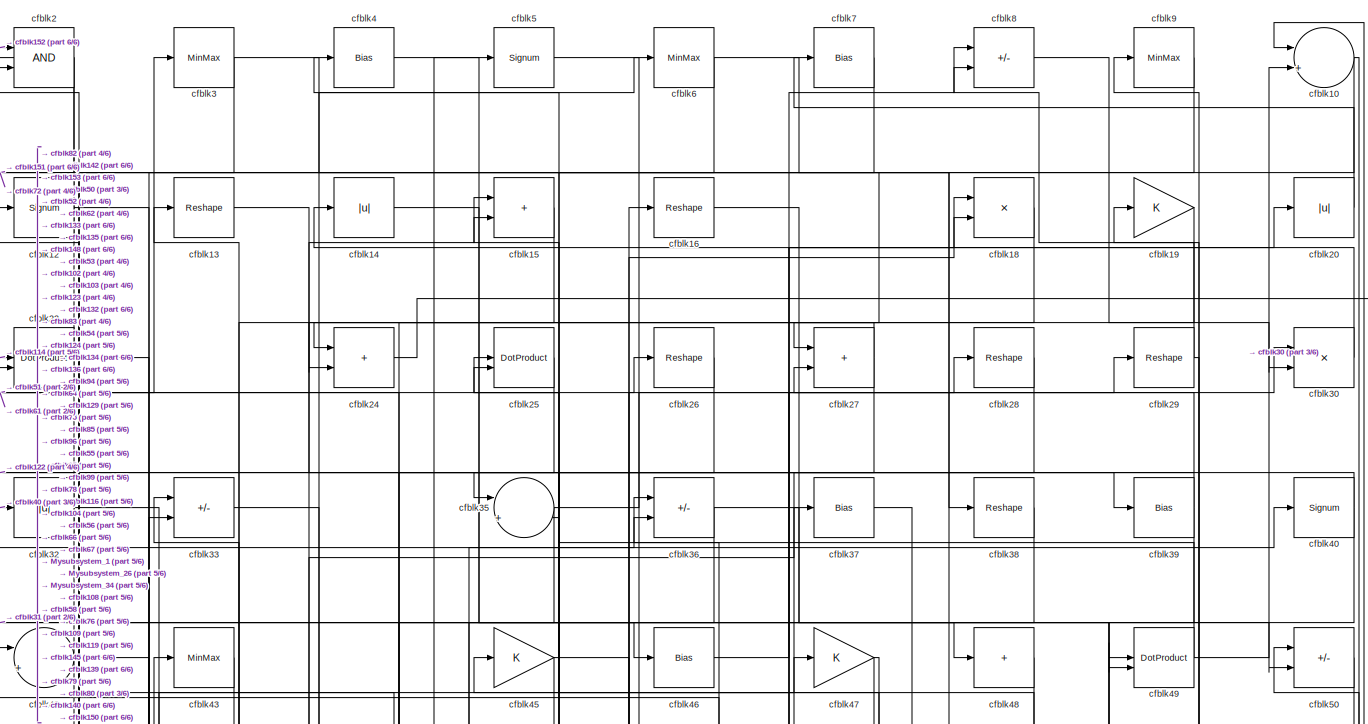
[diagram: root canvas - part 1/6, full width, top band]
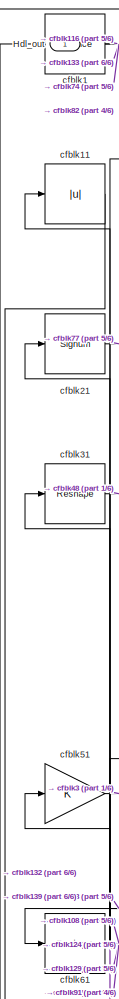
[diagram: root canvas - part 2/6, top left region]
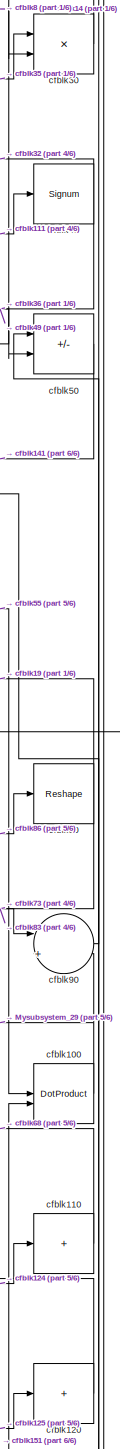
[diagram: root canvas - part 3/6, middle right region]
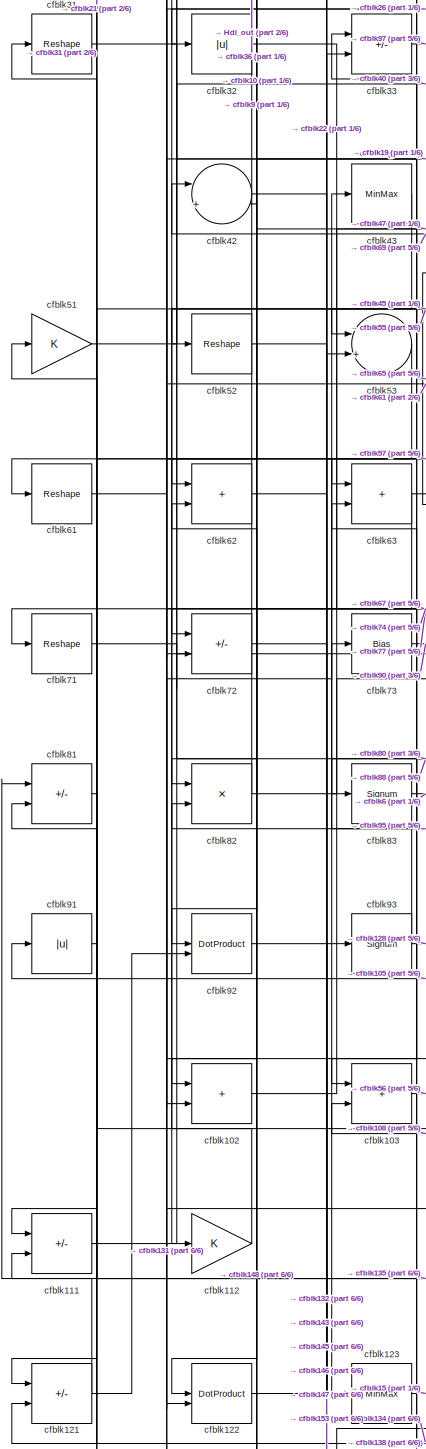
[diagram: root canvas - part 4/6, middle left region]
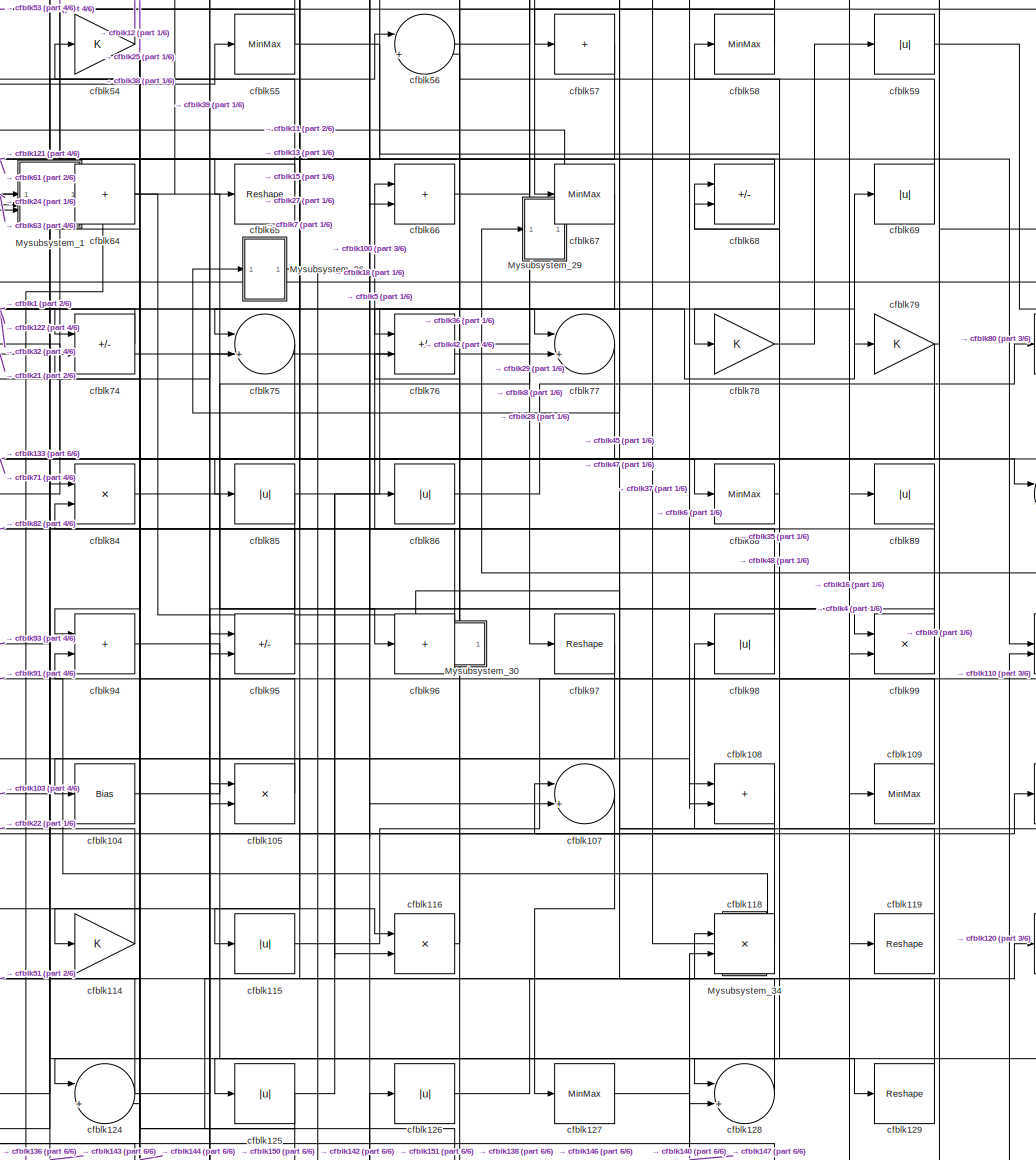
[diagram: root canvas - part 5/6, central region]
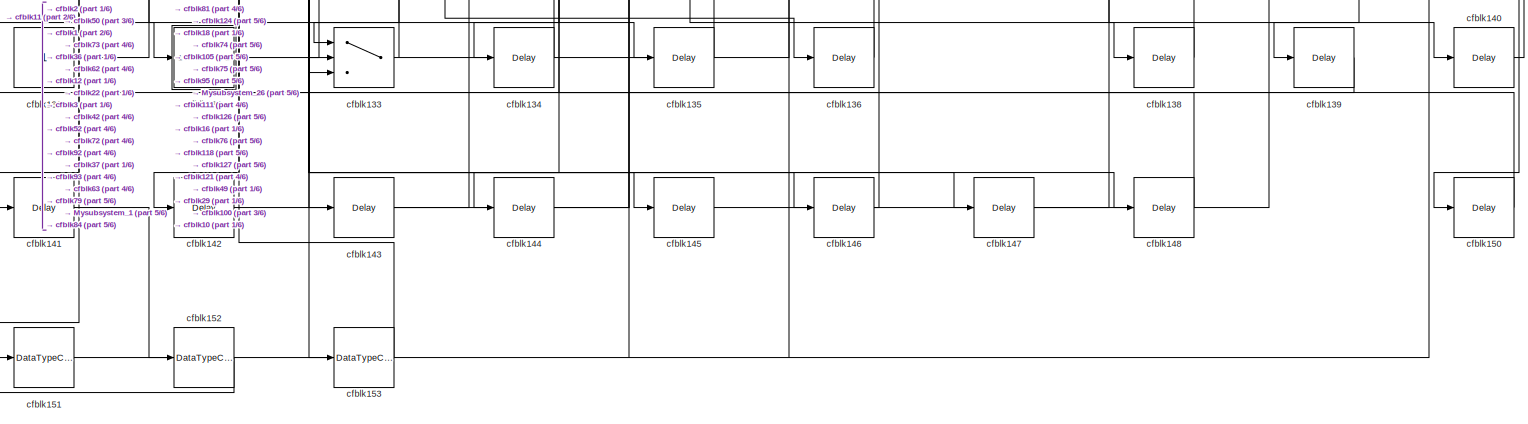
[diagram: root canvas - part 6/6, full width, bottom band]
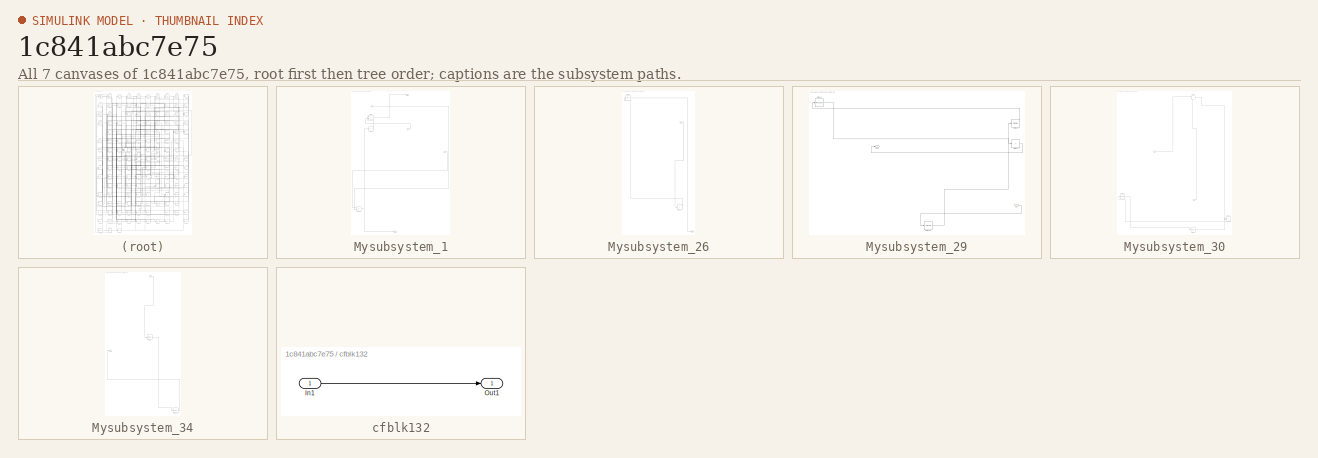
[diagram: thumbnail index - all 7 canvases of the model, root first then tree order]
MODEL slx_1c841abc7e75
KIND model
CONFIG AbsTol = auto
CONFIG EnableMultiTasking = off
CONFIG FixedStep = auto
CONFIG MaxStep = auto
CONFIG MinStep = auto
CONFIG RelTol = 1e-3
CONFIG SampleTimeConstraint = Unconstrained
CONFIG SolverName = VariableStepAuto
CONFIG StartTime = 0.0
CONFIG StopTime = 10.0
BLOCK [Outport] Hdl_out
  OutDataTypeStr = uint8
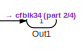
[diagram: Mysubsystem_1 - part 1/4, top center region]
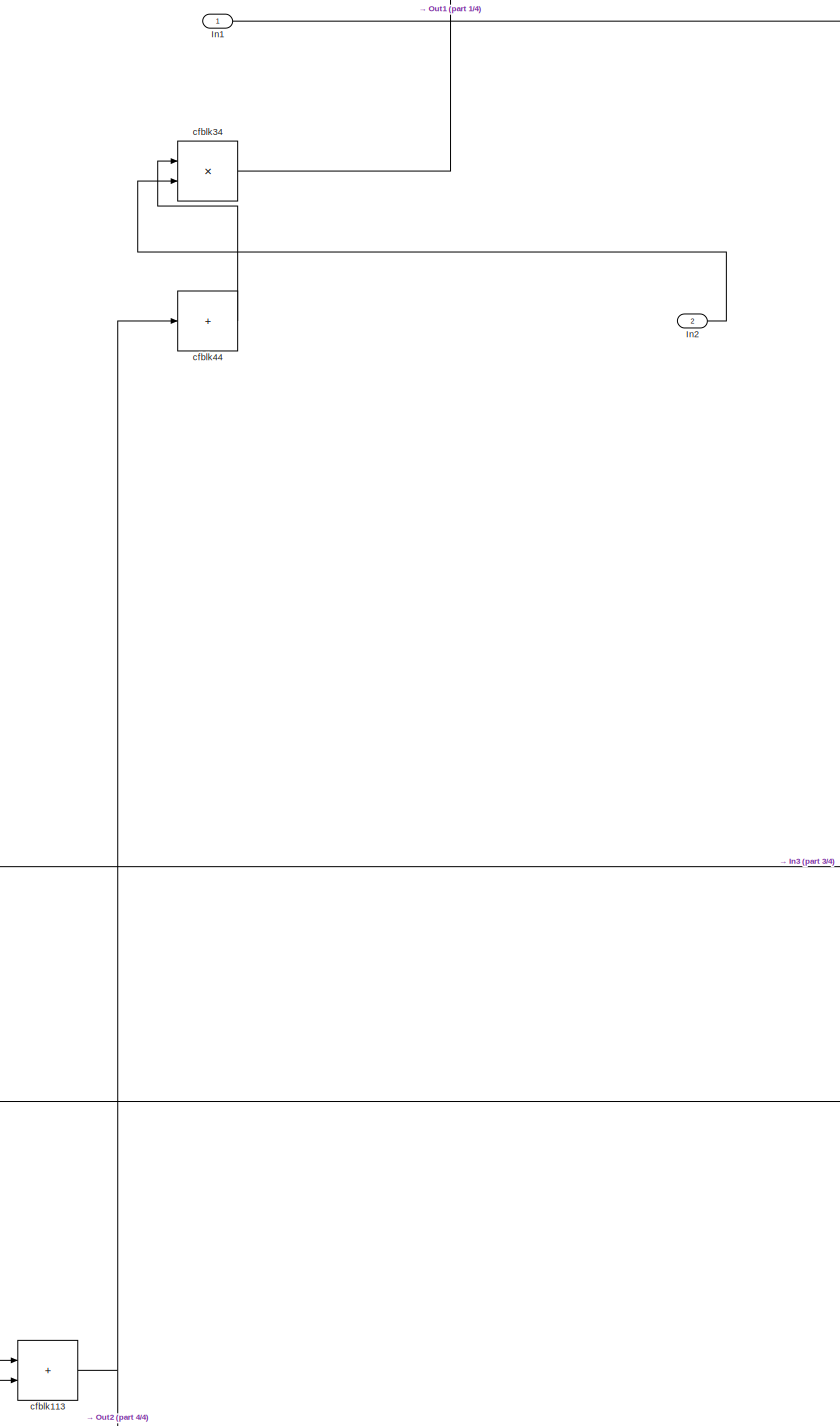
[diagram: Mysubsystem_1 - part 2/4, center side, full height]
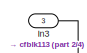
[diagram: Mysubsystem_1 - part 3/4, middle right region]
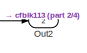
[diagram: Mysubsystem_1 - part 4/4, bottom center region]
BLOCK [SubSystem] Mysubsystem_1
  RTWFcnName = Mysubsystem_1
  RTWFcnNameOpts = User specified
  RTWFileNameOpts = Use function name
  RTWSystemCode = Reusable function
  TreatAsAtomicUnit = on
BLOCK [Inport] Mysubsystem_1/In1
BLOCK [Inport] Mysubsystem_1/In2
  Port = 2
BLOCK [Inport] Mysubsystem_1/In3
  Port = 3
BLOCK [Outport] Mysubsystem_1/Out1
BLOCK [Outport] Mysubsystem_1/Out2
  Port = 2
BLOCK [Sum] Mysubsystem_1/cfblk113
  IconShape = rectangular
BLOCK [Product] Mysubsystem_1/cfblk34
  Inputs = */
  RndMeth = Zero
  SaturateOnIntegerOverflow = on
BLOCK [Sum] Mysubsystem_1/cfblk44
  IconShape = rectangular
  Inputs = +
BLOCK [SubSystem] Mysubsystem_26
  RTWFcnName = Mysubsystem_26
  RTWFcnNameOpts = User specified
  RTWFileNameOpts = Use function name
  RTWSystemCode = Reusable function
  TreatAsAtomicUnit = on
BLOCK [Inport] Mysubsystem_26/In1
BLOCK [Outport] Mysubsystem_26/Out1
BLOCK [Sum] Mysubsystem_26/cfblk117
  IconShape = rectangular
  Inputs = +
BLOCK [Abs] Mysubsystem_26/cfblk23
  SaturateOnIntegerOverflow = off
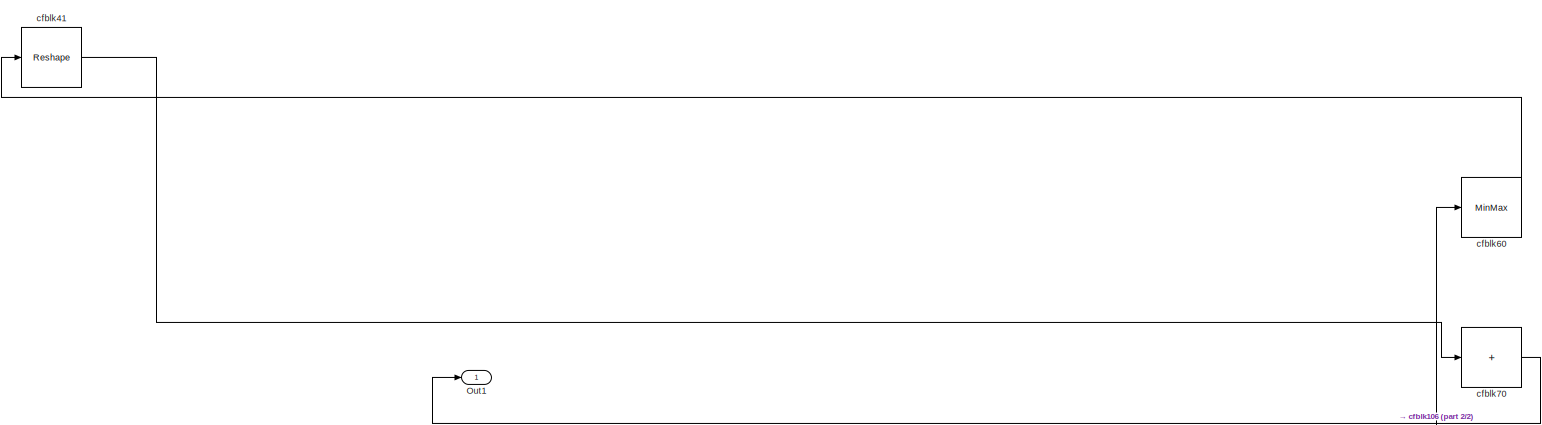
[diagram: Mysubsystem_29 - part 1/2, full width, top band]
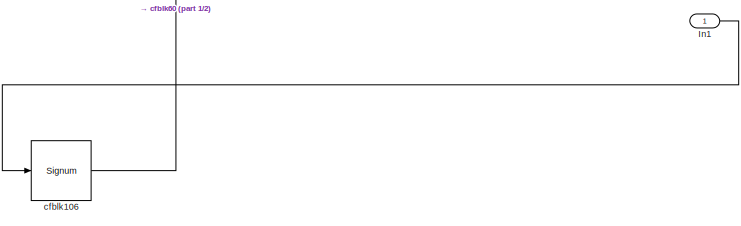
[diagram: Mysubsystem_29 - part 2/2, bottom right region]
BLOCK [SubSystem] Mysubsystem_29
  RTWFcnName = Mysubsystem_29
  RTWFcnNameOpts = User specified
  RTWFileNameOpts = Use function name
  RTWSystemCode = Reusable function
  TreatAsAtomicUnit = on
BLOCK [Inport] Mysubsystem_29/In1
BLOCK [Outport] Mysubsystem_29/Out1
BLOCK [Signum] Mysubsystem_29/cfblk106
BLOCK [Reshape] Mysubsystem_29/cfblk41
BLOCK [MinMax] Mysubsystem_29/cfblk60
BLOCK [Sum] Mysubsystem_29/cfblk70
  IconShape = rectangular
  Inputs = +
BLOCK [SubSystem] Mysubsystem_30
  RTWFcnName = Mysubsystem_30
  RTWFcnNameOpts = User specified
  RTWFileNameOpts = Use function name
  RTWSystemCode = Reusable function
  TreatAsAtomicUnit = on
BLOCK [Inport] Mysubsystem_30/In1
BLOCK [Inport] Mysubsystem_30/In2
  Port = 2
BLOCK [Reshape] Mysubsystem_30/cfblk101
BLOCK [Sum] Mysubsystem_30/cfblk130
  IconShape = rectangular
  Inputs = +-
BLOCK [Delay] Mysubsystem_30/cfblk137
  InputPortMap = u0
  SampleTime = 1
BLOCK [Sum] Mysubsystem_30/cfblk17
  Inputs = |++
BLOCK [SubSystem] Mysubsystem_34
  RTWFcnName = Mysubsystem_34
  RTWFcnNameOpts = User specified
  RTWFileNameOpts = Use function name
  RTWSystemCode = Reusable function
  TreatAsAtomicUnit = on
BLOCK [Inport] Mysubsystem_34/In1
BLOCK [Outport] Mysubsystem_34/Out1
BLOCK [Delay] Mysubsystem_34/cfblk149
  InputPortMap = u0
  SampleTime = 1
BLOCK [MinMax] Mysubsystem_34/cfblk87
BLOCK [Reference] cfblk1  REF=hdlsllib/Logic and Bit
Operations/Bit Slice
  SourceBlock = hdlsllib/Logic and Bit\nOperations/Bit Slice
  SourceType = Bit Slice
BLOCK [Sum] cfblk10
  Inputs = |++
  OutDataTypeStr = uint8
BLOCK [DotProduct] cfblk100
  OutDataTypeStr = uint8
BLOCK [Sum] cfblk102
  IconShape = rectangular
  OutDataTypeStr = uint8
BLOCK [Sum] cfblk103
  IconShape = rectangular
  OutDataTypeStr = uint8
BLOCK [Bias] cfblk104
  Bias = 0.0
  SaturateOnIntegerOverflow = off
BLOCK [Product] cfblk105
  Inputs = */
  OutDataTypeStr = uint8
  RndMeth = Zero
  SaturateOnIntegerOverflow = on
BLOCK [Sum] cfblk107
  Inputs = |++
  OutDataTypeStr = uint8
BLOCK [Sum] cfblk108
  IconShape = rectangular
  OutDataTypeStr = uint8
BLOCK [MinMax] cfblk109
  OutDataTypeStr = uint8
BLOCK [Abs] cfblk11
  OutDataTypeStr = uint8
  SaturateOnIntegerOverflow = off
BLOCK [Sum] cfblk110
  IconShape = rectangular
  Inputs = +
  OutDataTypeStr = uint8
BLOCK [Sum] cfblk111
  IconShape = rectangular
  Inputs = +-
  OutDataTypeStr = uint8
BLOCK [Gain] cfblk112
  OutDataTypeStr = uint8
BLOCK [Gain] cfblk114
  OutDataTypeStr = uint8
BLOCK [Abs] cfblk115
  OutDataTypeStr = uint8
  SaturateOnIntegerOverflow = off
BLOCK [Product] cfblk116
  Inputs = */
  OutDataTypeStr = uint8
  RndMeth = Zero
  SaturateOnIntegerOverflow = on
BLOCK [Product] cfblk118
  Inputs = */
  OutDataTypeStr = uint8
  RndMeth = Zero
  SaturateOnIntegerOverflow = on
BLOCK [Reshape] cfblk119
BLOCK [Signum] cfblk12
BLOCK [Sum] cfblk120
  IconShape = rectangular
  Inputs = +
  OutDataTypeStr = uint8
BLOCK [Sum] cfblk121
  IconShape = rectangular
  Inputs = +-
  OutDataTypeStr = uint8
BLOCK [DotProduct] cfblk122
  OutDataTypeStr = uint8
BLOCK [MinMax] cfblk123
  OutDataTypeStr = uint8
BLOCK [Sum] cfblk124
  Inputs = |++
  OutDataTypeStr = uint8
BLOCK [Abs] cfblk125
  OutDataTypeStr = uint8
  SaturateOnIntegerOverflow = off
BLOCK [Abs] cfblk126
  OutDataTypeStr = uint8
  SaturateOnIntegerOverflow = off
BLOCK [MinMax] cfblk127
  OutDataTypeStr = uint8
BLOCK [Sum] cfblk128
  Inputs = |++
  OutDataTypeStr = uint8
BLOCK [Reshape] cfblk129
BLOCK [Reshape] cfblk13
BLOCK [Constant] cfblk131
  OutDataTypeStr = uint8
  SampleTime = -1
BLOCK [SubSystem] cfblk132
  LibrarySourceBlock = hdlsllib/Ports &\nSubsystems/Subsystem
BLOCK [Inport] cfblk132/In1
BLOCK [Outport] cfblk132/Out1
BLOCK [Switch] cfblk133
  InputSameDT = off
  OutDataTypeStr = uint8
  SaturateOnIntegerOverflow = off
BLOCK [Delay] cfblk134
  InputPortMap = u0
  SampleTime = 1
BLOCK [Delay] cfblk135
  InputPortMap = u0
  SampleTime = 1
BLOCK [Delay] cfblk136
  InputPortMap = u0
  SampleTime = 1
BLOCK [Delay] cfblk138
  InputPortMap = u0
  SampleTime = 1
BLOCK [Delay] cfblk139
  InputPortMap = u0
  SampleTime = 1
BLOCK [Abs] cfblk14
  OutDataTypeStr = uint8
  SaturateOnIntegerOverflow = off
BLOCK [Delay] cfblk140
  InputPortMap = u0
  SampleTime = 1
BLOCK [Delay] cfblk141
  InputPortMap = u0
  SampleTime = 1
BLOCK [Delay] cfblk142
  InputPortMap = u0
  SampleTime = 1
BLOCK [Delay] cfblk143
  InputPortMap = u0
  SampleTime = 1
BLOCK [Delay] cfblk144
  InputPortMap = u0
  SampleTime = 1
BLOCK [Delay] cfblk145
  InputPortMap = u0
  SampleTime = 1
BLOCK [Delay] cfblk146
  InputPortMap = u0
  SampleTime = 1
BLOCK [Delay] cfblk147
  InputPortMap = u0
  SampleTime = 1
BLOCK [Delay] cfblk148
  InputPortMap = u0
  SampleTime = 1
BLOCK [Sum] cfblk15
  IconShape = rectangular
  OutDataTypeStr = uint8
BLOCK [Delay] cfblk150
  InputPortMap = u0
  SampleTime = 1
BLOCK [DataTypeConversion] cfblk151
  OutDataTypeStr = uint8
  RndMeth = Floor
  SaturateOnIntegerOverflow = off
BLOCK [DataTypeConversion] cfblk152
  OutDataTypeStr = uint8
  RndMeth = Floor
  SaturateOnIntegerOverflow = off
BLOCK [DataTypeConversion] cfblk153
  OutDataTypeStr = uint8
  RndMeth = Floor
  SaturateOnIntegerOverflow = off
BLOCK [Reshape] cfblk16
BLOCK [Product] cfblk18
  Inputs = */
  OutDataTypeStr = uint8
  RndMeth = Zero
  SaturateOnIntegerOverflow = on
BLOCK [Gain] cfblk19
  OutDataTypeStr = uint8
BLOCK [Logic] cfblk2
  AllPortsSameDT = off
  OutDataTypeStr = boolean
BLOCK [Abs] cfblk20
  OutDataTypeStr = uint8
  SaturateOnIntegerOverflow = off
BLOCK [Signum] cfblk21
BLOCK [DotProduct] cfblk22
  OutDataTypeStr = uint8
BLOCK [Sum] cfblk24
  IconShape = rectangular
  OutDataTypeStr = uint8
BLOCK [DotProduct] cfblk25
  OutDataTypeStr = uint8
BLOCK [Reshape] cfblk26
BLOCK [Sum] cfblk27
  IconShape = rectangular
  OutDataTypeStr = uint8
BLOCK [Reshape] cfblk28
BLOCK [Reshape] cfblk29
BLOCK [MinMax] cfblk3
  OutDataTypeStr = uint8
BLOCK [Product] cfblk30
  Inputs = */
  OutDataTypeStr = uint8
  RndMeth = Zero
  SaturateOnIntegerOverflow = on
BLOCK [Reshape] cfblk31
BLOCK [Abs] cfblk32
  OutDataTypeStr = uint8
  SaturateOnIntegerOverflow = off
BLOCK [Sum] cfblk33
  IconShape = rectangular
  Inputs = +-
  OutDataTypeStr = uint8
BLOCK [Sum] cfblk35
  Inputs = |++
  OutDataTypeStr = uint8
BLOCK [Sum] cfblk36
  IconShape = rectangular
  Inputs = +-
  OutDataTypeStr = uint8
BLOCK [Bias] cfblk37
  Bias = 0.0
  SaturateOnIntegerOverflow = off
BLOCK [Reshape] cfblk38
BLOCK [Bias] cfblk39
  Bias = 0.0
  SaturateOnIntegerOverflow = off
BLOCK [Bias] cfblk4
  Bias = 0.0
  SaturateOnIntegerOverflow = off
BLOCK [Signum] cfblk40
BLOCK [Sum] cfblk42
  Inputs = |++
  OutDataTypeStr = uint8
BLOCK [MinMax] cfblk43
  OutDataTypeStr = uint8
BLOCK [Gain] cfblk45
  OutDataTypeStr = uint8
BLOCK [Bias] cfblk46
  Bias = 0.0
  SaturateOnIntegerOverflow = off
BLOCK [Gain] cfblk47
  OutDataTypeStr = uint8
BLOCK [Sum] cfblk48
  IconShape = rectangular
  Inputs = +
  OutDataTypeStr = uint8
BLOCK [DotProduct] cfblk49
  OutDataTypeStr = uint8
BLOCK [Signum] cfblk5
BLOCK [Sum] cfblk50
  IconShape = rectangular
  Inputs = +-
  OutDataTypeStr = uint8
BLOCK [Gain] cfblk51
  OutDataTypeStr = uint8
BLOCK [Reshape] cfblk52
BLOCK [Sum] cfblk53
  Inputs = |++
  OutDataTypeStr = uint8
BLOCK [Gain] cfblk54
  OutDataTypeStr = uint8
BLOCK [MinMax] cfblk55
  OutDataTypeStr = uint8
BLOCK [Sum] cfblk56
  Inputs = |++
  OutDataTypeStr = uint8
BLOCK [Sum] cfblk57
  IconShape = rectangular
  Inputs = +
  OutDataTypeStr = uint8
BLOCK [MinMax] cfblk58
  OutDataTypeStr = uint8
BLOCK [Abs] cfblk59
  OutDataTypeStr = uint8
  SaturateOnIntegerOverflow = off
BLOCK [MinMax] cfblk6
  OutDataTypeStr = uint8
BLOCK [Reshape] cfblk61
BLOCK [Sum] cfblk62
  IconShape = rectangular
  OutDataTypeStr = uint8
BLOCK [Sum] cfblk63
  IconShape = rectangular
  OutDataTypeStr = uint8
BLOCK [Sum] cfblk64
  IconShape = rectangular
  Inputs = +
  OutDataTypeStr = uint8
BLOCK [Reshape] cfblk65
BLOCK [Sum] cfblk66
  IconShape = rectangular
  OutDataTypeStr = uint8
BLOCK [MinMax] cfblk67
  OutDataTypeStr = uint8
BLOCK [Sum] cfblk68
  IconShape = rectangular
  Inputs = +-
  OutDataTypeStr = uint8
BLOCK [Abs] cfblk69
  OutDataTypeStr = uint8
  SaturateOnIntegerOverflow = off
BLOCK [Bias] cfblk7
  Bias = 0.0
  SaturateOnIntegerOverflow = off
BLOCK [Reshape] cfblk71
BLOCK [Sum] cfblk72
  IconShape = rectangular
  Inputs = +-
  OutDataTypeStr = uint8
BLOCK [Bias] cfblk73
  Bias = 0.0
  SaturateOnIntegerOverflow = off
BLOCK [Sum] cfblk74
  IconShape = rectangular
  Inputs = +-
  OutDataTypeStr = uint8
BLOCK [Sum] cfblk75
  Inputs = |++
  OutDataTypeStr = uint8
BLOCK [Sum] cfblk76
  IconShape = rectangular
  Inputs = +-
  OutDataTypeStr = uint8
BLOCK [Sum] cfblk77
  Inputs = |++
  OutDataTypeStr = uint8
BLOCK [Gain] cfblk78
  OutDataTypeStr = uint8
BLOCK [Gain] cfblk79
  OutDataTypeStr = uint8
BLOCK [Sum] cfblk8
  IconShape = rectangular
  Inputs = +-
  OutDataTypeStr = uint8
BLOCK [Reshape] cfblk80
BLOCK [Sum] cfblk81
  IconShape = rectangular
  Inputs = +-
  OutDataTypeStr = uint8
BLOCK [Product] cfblk82
  Inputs = */
  OutDataTypeStr = uint8
  RndMeth = Zero
  SaturateOnIntegerOverflow = on
BLOCK [Signum] cfblk83
BLOCK [Product] cfblk84
  Inputs = */
  OutDataTypeStr = uint8
  RndMeth = Zero
  SaturateOnIntegerOverflow = on
BLOCK [Abs] cfblk85
  OutDataTypeStr = uint8
  SaturateOnIntegerOverflow = off
BLOCK [Abs] cfblk86
  OutDataTypeStr = uint8
  SaturateOnIntegerOverflow = off
BLOCK [MinMax] cfblk88
  OutDataTypeStr = uint8
BLOCK [Abs] cfblk89
  OutDataTypeStr = uint8
  SaturateOnIntegerOverflow = off
BLOCK [MinMax] cfblk9
  OutDataTypeStr = uint8
BLOCK [Sum] cfblk90
  Inputs = |++
  OutDataTypeStr = uint8
BLOCK [Abs] cfblk91
  OutDataTypeStr = uint8
  SaturateOnIntegerOverflow = off
BLOCK [DotProduct] cfblk92
  OutDataTypeStr = uint8
BLOCK [Signum] cfblk93
BLOCK [Sum] cfblk94
  IconShape = rectangular
  OutDataTypeStr = uint8
BLOCK [Sum] cfblk95
  IconShape = rectangular
  Inputs = +-
  OutDataTypeStr = uint8
BLOCK [Sum] cfblk96
  IconShape = rectangular
  Inputs = +
  OutDataTypeStr = uint8
BLOCK [Reshape] cfblk97
BLOCK [Abs] cfblk98
  OutDataTypeStr = uint8
  SaturateOnIntegerOverflow = off
BLOCK [Product] cfblk99
  Inputs = */
  OutDataTypeStr = uint8
  RndMeth = Zero
  SaturateOnIntegerOverflow = on
LINE Mysubsystem_1/In1:1 -> Mysubsystem_1/cfblk113:2
LINE Mysubsystem_1/In2:1 -> Mysubsystem_1/cfblk34:2
LINE Mysubsystem_1/In3:1 -> Mysubsystem_1/cfblk113:1
NET Mysubsystem_1/cfblk113:1 -> Mysubsystem_1/Out2:1, Mysubsystem_1/cfblk44:1
LINE Mysubsystem_1/cfblk34:1 -> Mysubsystem_1/Out1:1
LINE Mysubsystem_1/cfblk44:1 -> Mysubsystem_1/cfblk34:1
LINE Mysubsystem_1:1 -> Mysubsystem_30:1
LINE Mysubsystem_1:2 -> cfblk136:1
LINE Mysubsystem_26/In1:1 -> Mysubsystem_26/cfblk117:1
LINE Mysubsystem_26/cfblk117:1 -> Mysubsystem_26/cfblk23:1
LINE Mysubsystem_26/cfblk23:1 -> Mysubsystem_26/Out1:1
LINE Mysubsystem_26:1 -> cfblk138:1
LINE Mysubsystem_29/In1:1 -> Mysubsystem_29/cfblk106:1
LINE Mysubsystem_29/cfblk106:1 -> Mysubsystem_29/cfblk60:1
LINE Mysubsystem_29/cfblk41:1 -> Mysubsystem_29/cfblk70:1
LINE Mysubsystem_29/cfblk60:1 -> Mysubsystem_29/cfblk41:1
LINE Mysubsystem_29/cfblk70:1 -> Mysubsystem_29/Out1:1
LINE Mysubsystem_29:1 -> Mysubsystem_1:3
LINE Mysubsystem_30/In1:1 -> Mysubsystem_30/cfblk17:1
LINE Mysubsystem_30/In2:1 -> Mysubsystem_30/cfblk17:2
LINE Mysubsystem_30/cfblk101:1 -> Mysubsystem_30/cfblk137:1
LINE Mysubsystem_30/cfblk130:1 -> Mysubsystem_30/cfblk101:1
LINE Mysubsystem_30/cfblk137:1 -> Mysubsystem_30/cfblk130:1
LINE Mysubsystem_30/cfblk17:1 -> Mysubsystem_30/cfblk130:2
LINE Mysubsystem_34/In1:1 -> Mysubsystem_34/cfblk87:1
LINE Mysubsystem_34/cfblk149:1 -> Mysubsystem_34/Out1:1
LINE Mysubsystem_34/cfblk87:1 -> Mysubsystem_34/cfblk149:1
LINE Mysubsystem_34:1 -> cfblk94:2
NET cfblk100:1 -> Mysubsystem_29:1, cfblk90:2
LINE cfblk102:1 -> cfblk47:1
LINE cfblk103:1 -> cfblk56:1
LINE cfblk104:1 -> cfblk29:1
LINE cfblk105:1 -> cfblk91:1
LINE cfblk107:1 -> cfblk127:1
LINE cfblk108:1 -> cfblk103:2
LINE cfblk109:1 -> cfblk64:1
NET cfblk10:1 -> cfblk150:1, cfblk27:1, cfblk62:1
LINE cfblk110:1 -> cfblk68:1
LINE cfblk111:1 -> cfblk40:1
LINE cfblk112:1 -> cfblk31:1
LINE cfblk114:1 -> cfblk22:1
LINE cfblk115:1 -> cfblk89:1
LINE cfblk116:1 -> cfblk36:1
NET cfblk118:1 -> cfblk84:2, cfblk98:1
LINE cfblk119:1 -> cfblk45:1
LINE cfblk11:1 -> cfblk132:1
LINE cfblk120:1 -> cfblk68:2
NET cfblk121:1 -> cfblk81:1, cfblk92:2
LINE cfblk122:1 -> cfblk33:2
LINE cfblk123:1 -> cfblk15:1
NET cfblk124:1 -> cfblk110:1, cfblk144:1, cfblk51:1
NET cfblk125:1 -> cfblk120:1, cfblk86:1
LINE cfblk126:1 -> cfblk118:1
LINE cfblk127:1 -> cfblk140:1
NET cfblk128:1 -> Mysubsystem_30:2, cfblk107:1
NET cfblk129:1 -> cfblk11:1, cfblk15:2
NET cfblk12:1 -> cfblk148:1, cfblk66:2
LINE cfblk131:1 -> cfblk73:1
LINE cfblk132/In1:1 -> cfblk132/Out1:1
NET cfblk132:1 -> cfblk37:1, cfblk93:1
NET cfblk133:1 -> cfblk16:1, cfblk63:2
LINE cfblk134:1 -> cfblk81:2
LINE cfblk135:1 -> cfblk111:2
LINE cfblk136:1 -> cfblk22:2
LINE cfblk138:1 -> cfblk121:2
LINE cfblk139:1 -> cfblk1:1
LINE cfblk13:1 -> cfblk39:1
LINE cfblk140:1 -> cfblk10:1
LINE cfblk141:1 -> cfblk152:1
LINE cfblk142:1 -> cfblk95:1
LINE cfblk143:1 -> cfblk84:1
LINE cfblk144:1 -> cfblk105:1
LINE cfblk145:1 -> cfblk49:1
LINE cfblk146:1 -> cfblk76:2
LINE cfblk147:1 -> cfblk118:2
LINE cfblk148:1 -> cfblk62:2
LINE cfblk14:1 -> cfblk46:1
LINE cfblk150:1 -> cfblk74:2
NET cfblk151:1 -> cfblk100:2, cfblk126:1, cfblk75:2
LINE cfblk152:1 -> cfblk2:1
LINE cfblk153:1 -> cfblk2:2
LINE cfblk15:1 -> cfblk24:2
LINE cfblk16:1 -> cfblk119:1
LINE cfblk18:1 -> cfblk134:1
LINE cfblk19:1 -> cfblk103:1
NET cfblk1:1 -> cfblk116:1, cfblk133:2, cfblk74:1
LINE cfblk20:1 -> cfblk7:1
LINE cfblk21:1 -> cfblk77:2
NET cfblk22:1 -> cfblk135:1, cfblk53:2
LINE cfblk24:1 -> Mysubsystem_1:1
LINE cfblk25:1 -> cfblk124:2
LINE cfblk26:1 -> cfblk122:2
NET cfblk27:1 -> cfblk24:1, cfblk85:1
LINE cfblk28:1 -> cfblk67:1
NET cfblk29:1 -> cfblk139:1, cfblk8:2
LINE cfblk2:1 -> cfblk151:1
LINE cfblk30:1 -> cfblk14:1
LINE cfblk31:1 -> cfblk48:1
LINE cfblk32:1 -> cfblk77:1
LINE cfblk33:1 -> cfblk97:1
NET cfblk35:1 -> cfblk102:2, cfblk30:1
NET cfblk36:1 -> cfblk142:1, cfblk50:2
LINE cfblk37:1 -> Mysubsystem_34:1
LINE cfblk38:1 -> cfblk94:1
NET cfblk39:1 -> cfblk27:2, cfblk35:1, cfblk95:2
NET cfblk3:1 -> cfblk133:3, cfblk38:1
NET cfblk40:1 -> cfblk32:1, cfblk49:2
LINE cfblk42:1 -> cfblk143:1
LINE cfblk43:1 -> cfblk112:1
NET cfblk45:1 -> cfblk102:1, cfblk99:2
LINE cfblk46:1 -> cfblk20:1
NET cfblk47:1 -> Mysubsystem_1:2, Mysubsystem_26:1
LINE cfblk48:1 -> cfblk76:1
NET cfblk49:1 -> cfblk10:2, cfblk25:2, cfblk4:1
LINE cfblk4:1 -> cfblk109:1
LINE cfblk50:1 -> cfblk141:1
LINE cfblk51:1 -> cfblk3:1
NET cfblk52:1 -> cfblk147:1, cfblk82:1, cfblk92:1
LINE cfblk53:1 -> cfblk123:1
LINE cfblk54:1 -> cfblk12:1
NET cfblk55:1 -> cfblk100:1, cfblk18:2, cfblk53:1
LINE cfblk56:1 -> cfblk8:1
LINE cfblk57:1 -> cfblk121:1
NET cfblk58:1 -> cfblk35:2, cfblk57:1
LINE cfblk59:1 -> cfblk125:1
LINE cfblk5:1 -> cfblk78:1
NET cfblk61:1 -> cfblk108:2, cfblk26:1, cfblk55:1, cfblk63:1
LINE cfblk62:1 -> cfblk153:1
NET cfblk63:1 -> cfblk65:1, cfblk72:1
NET cfblk64:1 -> cfblk5:1, cfblk99:1
LINE cfblk65:1 -> cfblk33:1
LINE cfblk66:1 -> cfblk18:1
LINE cfblk67:1 -> cfblk122:1
LINE cfblk68:1 -> cfblk61:1
LINE cfblk69:1 -> cfblk42:1
NET cfblk6:1 -> cfblk108:1, cfblk72:2
LINE cfblk71:1 -> cfblk88:1
LINE cfblk72:1 -> cfblk145:1
LINE cfblk73:1 -> cfblk90:1
LINE cfblk74:1 -> cfblk71:1
LINE cfblk75:1 -> cfblk114:1
LINE cfblk76:1 -> cfblk79:1
LINE cfblk77:1 -> cfblk124:1
LINE cfblk78:1 -> cfblk59:1
NET cfblk79:1 -> cfblk133:1, cfblk9:1
LINE cfblk7:1 -> cfblk75:1
NET cfblk80:1 -> cfblk19:1, cfblk83:1
LINE cfblk81:1 -> cfblk111:1
NET cfblk82:1 -> Hdl_out:1, cfblk36:2, cfblk42:2
LINE cfblk83:1 -> cfblk6:1
LINE cfblk84:1 -> cfblk96:1
NET cfblk85:1 -> cfblk105:2, cfblk116:2, cfblk69:1
LINE cfblk86:1 -> cfblk80:1
LINE cfblk88:1 -> cfblk58:1
LINE cfblk89:1 -> cfblk128:1
LINE cfblk8:1 -> cfblk30:2
LINE cfblk90:1 -> cfblk50:1
LINE cfblk91:1 -> cfblk21:1
LINE cfblk92:1 -> cfblk146:1
NET cfblk93:1 -> cfblk128:2, cfblk43:1
LINE cfblk94:1 -> cfblk129:1
NET cfblk95:1 -> cfblk107:2, cfblk28:1, cfblk82:2
NET cfblk96:1 -> cfblk13:1, cfblk25:1, cfblk56:2
NET cfblk97:1 -> cfblk104:1, cfblk115:1
LINE cfblk98:1 -> cfblk66:1
LINE cfblk99:1 -> cfblk54:1
LINE cfblk9:1 -> cfblk52:1
note: NET lines group one-source signal fan-out (src -> all destinations, sorted); 1:1 wires keep LINE
